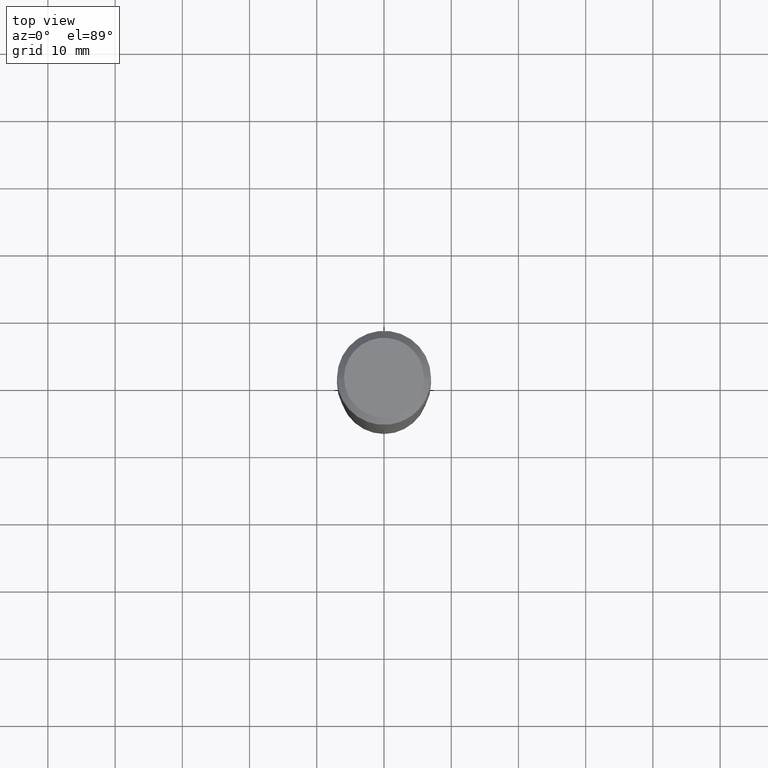
[diagram: clean part render]
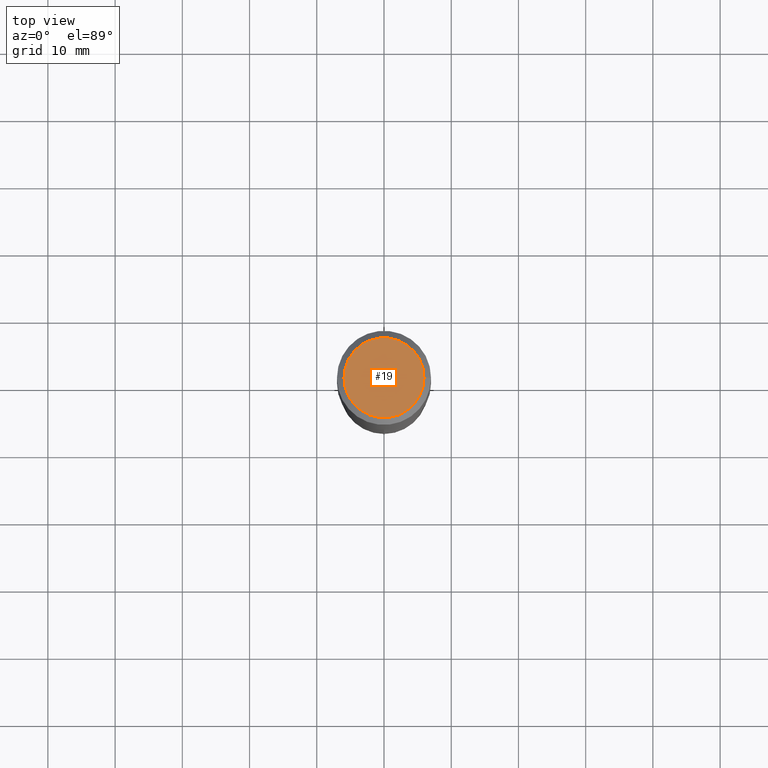
[diagram: same view with one face highlighted and labeled with its STEP entity id]
A machine part, top view. The second image highlights one B-rep face of the part: STEP entity #19.
In plain terms, the highlighted planar face has unit normal (0, -0, -1).
Its self-contained STEP definition (entity closure, byte-faithful):
#16 = CARTESIAN_POINT ( 'NONE',  ( -1.002970424325033577E-46, 1.431975951230896486E-32, 4.101342130344485961E-18 ) ) ;
#19 = ADVANCED_FACE ( 'NONE', ( #375 ), #381, .F. ) ;
#20 = AXIS2_PLACEMENT_3D ( 'NONE', #16, #96, #247 ) ;
#45 = VERTEX_POINT ( 'NONE', #305 ) ;
#66 = DIRECTION ( 'NONE',  ( -2.445468806185136597E-29, 3.491481338843145583E-15, 1.000000000000000000 ) ) ;
#75 = VERTEX_POINT ( 'NONE', #270 ) ;
#96 = DIRECTION ( 'NONE',  ( -2.445468806185136597E-29, 3.491481338843145583E-15, 1.000000000000000000 ) ) ;
#98 = DIRECTION ( 'NONE',  ( 1.000000000000000000, -6.982962677686267499E-15, 4.876157962347795834E-29 ) ) ;
#134 = CIRCLE ( 'NONE', #195, 0.2342600000000000238 ) ;
#144 = ORIENTED_EDGE ( 'NONE', *, *, #387, .T. ) ;
#161 = DIRECTION ( 'NONE',  ( -1.000000000000000000, 6.982962677686265922E-15, -4.876176775795935793E-29 ) ) ;
#170 = CIRCLE ( 'NONE', #20, 0.2342600000000000238 ) ;
#195 = AXIS2_PLACEMENT_3D ( 'NONE', #291, #66, #98 ) ;
#197 = EDGE_CURVE ( 'NONE', #75, #45, #170, .T. ) ;
#247 = DIRECTION ( 'NONE',  ( 1.000000000000000000, -6.982962677686267499E-15, 4.876157962347795834E-29 ) ) ;
#270 = CARTESIAN_POINT ( 'NONE',  ( 0.2342600000000000238, -1.821115673845785155E-15, 4.101342130356573868E-18 ) ) ;
#291 = CARTESIAN_POINT ( 'NONE',  ( -1.002970424325033577E-46, 1.431975951230896486E-32, 4.101342130344485961E-18 ) ) ;
#305 = CARTESIAN_POINT ( 'NONE',  ( -0.2342600000000000238, 1.707997756148671759E-15, 4.101342130332794026E-18 ) ) ;
#309 = DIRECTION ( 'NONE',  ( 2.438088387897960049E-29, -3.491481338843145188E-15, -1.000000000000000000 ) ) ;
#375 = FACE_OUTER_BOUND ( 'NONE', #479, .T. ) ;
#381 = PLANE ( 'NONE',  #400 ) ;
#387 = EDGE_CURVE ( 'NONE', #45, #75, #134, .T. ) ;
#400 = AXIS2_PLACEMENT_3D ( 'NONE', #423, #309, #161 ) ;
#423 = CARTESIAN_POINT ( 'NONE',  ( -5.014852121625167883E-47, 7.159879756154482429E-33, 2.050671065172242981E-18 ) ) ;
#448 = ORIENTED_EDGE ( 'NONE', *, *, #197, .T. ) ;
#479 = EDGE_LOOP ( 'NONE', ( #144, #448 ) ) ;